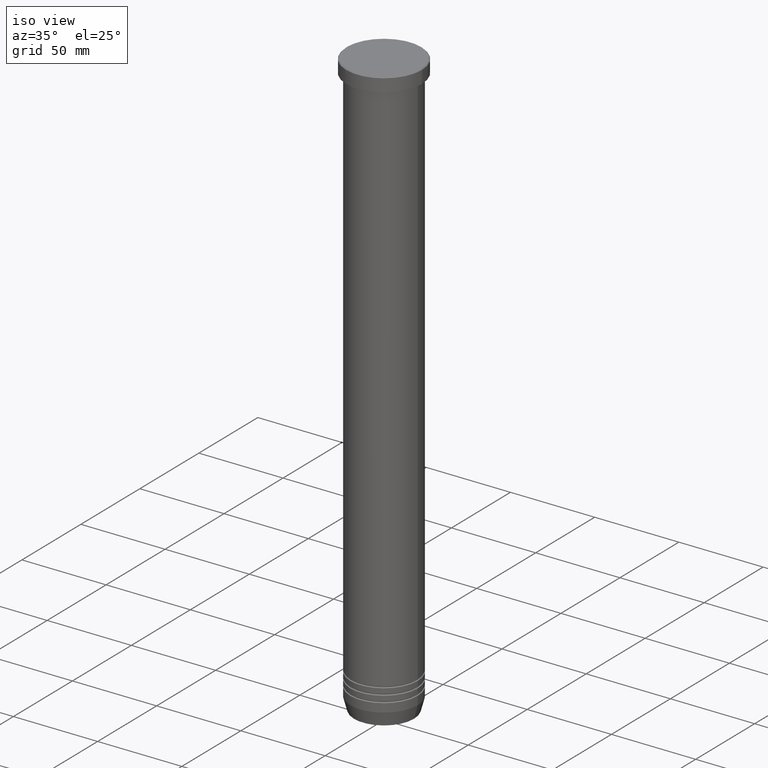
[diagram: clean part render]
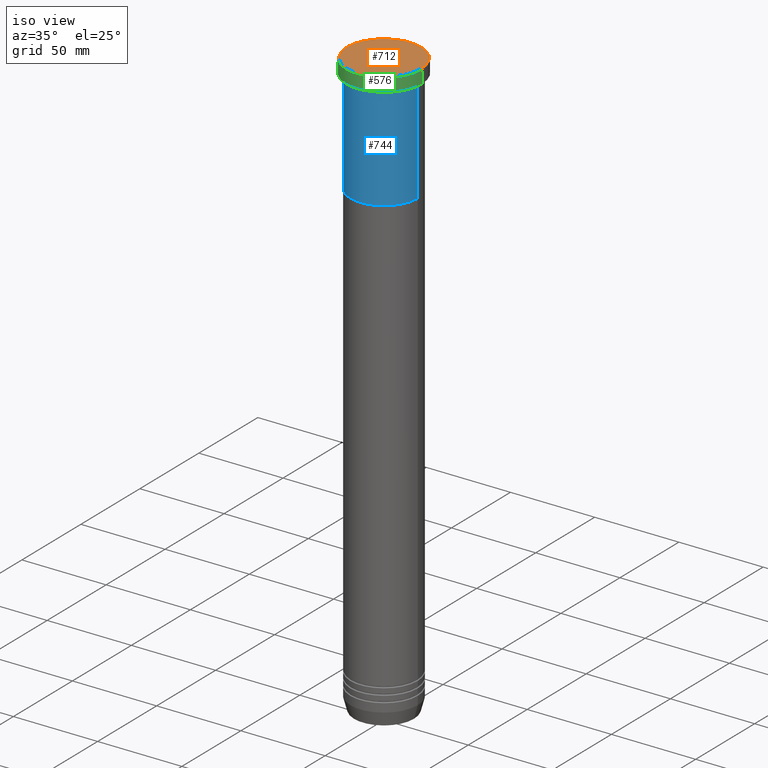
[diagram: same view with three faces highlighted in distinct colors, each labeled with its STEP entity id]
A machine part, iso view with three faces highlighted in distinct colors.
Their STEP definitions:

[orange] entity #712 — the highlighted planar face has unit normal (0, -0, 1).
#23 = AXIS2_PLACEMENT_3D ( 'NONE', #930, #537, #862 ) ;
#26 = ORIENTED_EDGE ( 'NONE', *, *, #195, .T. ) ;
#177 = CARTESIAN_POINT ( 'NONE',  ( 0.000000000000000000, 0.000000000000000000, 0.000000000000000000 ) ) ;
#195 = EDGE_CURVE ( 'NONE', #359, #528, #369, .T. ) ;
#239 = DIRECTION ( 'NONE',  ( 1.000000000000000000, 0.000000000000000000, 0.000000000000000000 ) ) ;
#331 = CARTESIAN_POINT ( 'NONE',  ( 21.99999999999997868, 2.724839128102859413E-15, 0.000000000000000000 ) ) ;
#344 = DIRECTION ( 'NONE',  ( 1.000000000000000000, 0.000000000000000000, 0.000000000000000000 ) ) ;
#359 = VERTEX_POINT ( 'NONE', #331 ) ;
#369 = CIRCLE ( 'NONE', #853, 21.99999999999997868 ) ;
#375 = EDGE_CURVE ( 'NONE', #528, #359, #686, .T. ) ;
#378 = ORIENTED_EDGE ( 'NONE', *, *, #375, .T. ) ;
#422 = CARTESIAN_POINT ( 'NONE',  ( 0.000000000000000000, 0.000000000000000000, 0.000000000000000000 ) ) ;
#528 = VERTEX_POINT ( 'NONE', #955 ) ;
#537 = DIRECTION ( 'NONE',  ( 0.000000000000000000, -0.000000000000000000, 1.000000000000000000 ) ) ;
#545 = DIRECTION ( 'NONE',  ( -0.000000000000000000, -0.000000000000000000, 1.000000000000000000 ) ) ;
#603 = PLANE ( 'NONE',  #23 ) ;
#635 = DIRECTION ( 'NONE',  ( -0.000000000000000000, -0.000000000000000000, 1.000000000000000000 ) ) ;
#686 = CIRCLE ( 'NONE', #756, 21.99999999999997868 ) ;
#712 = ADVANCED_FACE ( 'NONE', ( #926 ), #603, .T. ) ;
#756 = AXIS2_PLACEMENT_3D ( 'NONE', #422, #545, #239 ) ;
#830 = EDGE_LOOP ( 'NONE', ( #378, #26 ) ) ;
#853 = AXIS2_PLACEMENT_3D ( 'NONE', #177, #635, #344 ) ;
#862 = DIRECTION ( 'NONE',  ( 1.000000000000000000, 0.000000000000000000, 0.000000000000000000 ) ) ;
#926 = FACE_OUTER_BOUND ( 'NONE', #830, .T. ) ;
#930 = CARTESIAN_POINT ( 'NONE',  ( 0.000000000000000000, 0.000000000000000000, 0.000000000000000000 ) ) ;
#955 = CARTESIAN_POINT ( 'NONE',  ( -21.99999999999997868, 0.000000000000000000, 0.000000000000000000 ) ) ;

[blue] entity #744 — the highlighted cylindrical surface (partial cylindrical patch) has radius 20 mm, axis along (-0, -0, 1).
#84 = ORIENTED_EDGE ( 'NONE', *, *, #594, .F. ) ;
#91 = ORIENTED_EDGE ( 'NONE', *, *, #184, .F. ) ;
#116 = DIRECTION ( 'NONE',  ( -0.000000000000000000, -0.000000000000000000, 1.000000000000000000 ) ) ;
#134 = EDGE_LOOP ( 'NONE', ( #91, #593, #402, #84 ) ) ;
#159 = CARTESIAN_POINT ( 'NONE',  ( 0.000000000000000000, 0.000000000000000000, -70.00000000000000000 ) ) ;
#183 = CARTESIAN_POINT ( 'NONE',  ( 0.000000000000000000, 0.000000000000000000, -9.000000000000001776 ) ) ;
#184 = EDGE_CURVE ( 'NONE', #604, #512, #786, .T. ) ;
#247 = DIRECTION ( 'NONE',  ( -0.000000000000000000, -0.000000000000000000, 1.000000000000000000 ) ) ;
#261 = CARTESIAN_POINT ( 'NONE',  ( -20.00000000000000000, 2.449293598294706513E-15, -9.000000000000001776 ) ) ;
#349 = CIRCLE ( 'NONE', #759, 20.00000000000000000 ) ;
#354 = VERTEX_POINT ( 'NONE', #784 ) ;
#367 = CIRCLE ( 'NONE', #530, 20.00000000000000000 ) ;
#402 = ORIENTED_EDGE ( 'NONE', *, *, #1061, .T. ) ;
#408 = CYLINDRICAL_SURFACE ( 'NONE', #643, 20.00000000000000000 ) ;
#435 = EDGE_CURVE ( 'NONE', #604, #575, #367, .T. ) ;
#480 = DIRECTION ( 'NONE',  ( -0.000000000000000000, -0.000000000000000000, 1.000000000000000000 ) ) ;
#481 = CARTESIAN_POINT ( 'NONE',  ( -20.00000000000000000, 2.449293598294706513E-15, 0.000000000000000000 ) ) ;
#512 = VERTEX_POINT ( 'NONE', #261 ) ;
#530 = AXIS2_PLACEMENT_3D ( 'NONE', #159, #480, #791 ) ;
#555 = DIRECTION ( 'NONE',  ( -0.000000000000000000, -0.000000000000000000, 1.000000000000000000 ) ) ;
#561 = FACE_OUTER_BOUND ( 'NONE', #134, .T. ) ;
#575 = VERTEX_POINT ( 'NONE', #982 ) ;
#579 = CARTESIAN_POINT ( 'NONE',  ( 20.00000000000000000, 0.000000000000000000, 0.000000000000000000 ) ) ;
#593 = ORIENTED_EDGE ( 'NONE', *, *, #435, .T. ) ;
#594 = EDGE_CURVE ( 'NONE', #512, #354, #349, .T. ) ;
#604 = VERTEX_POINT ( 'NONE', #747 ) ;
#643 = AXIS2_PLACEMENT_3D ( 'NONE', #1053, #555, #692 ) ;
#645 = VECTOR ( 'NONE', #116, 1000.000000000000000 ) ;
#692 = DIRECTION ( 'NONE',  ( 1.000000000000000000, 0.000000000000000000, 0.000000000000000000 ) ) ;
#703 = DIRECTION ( 'NONE',  ( 1.000000000000000000, 0.000000000000000000, 0.000000000000000000 ) ) ;
#739 = VECTOR ( 'NONE', #895, 1000.000000000000000 ) ;
#744 = ADVANCED_FACE ( 'NONE', ( #561 ), #408, .T. ) ;
#747 = CARTESIAN_POINT ( 'NONE',  ( -20.00000000000000000, 2.449293598294706513E-15, -70.00000000000000000 ) ) ;
#759 = AXIS2_PLACEMENT_3D ( 'NONE', #183, #247, #703 ) ;
#784 = CARTESIAN_POINT ( 'NONE',  ( 20.00000000000000000, 0.000000000000000000, -9.000000000000001776 ) ) ;
#786 = LINE ( 'NONE', #481, #739 ) ;
#791 = DIRECTION ( 'NONE',  ( 1.000000000000000000, 0.000000000000000000, 0.000000000000000000 ) ) ;
#815 = LINE ( 'NONE', #579, #645 ) ;
#895 = DIRECTION ( 'NONE',  ( -0.000000000000000000, -0.000000000000000000, 1.000000000000000000 ) ) ;
#982 = CARTESIAN_POINT ( 'NONE',  ( 20.00000000000000000, 0.000000000000000000, -70.00000000000000000 ) ) ;
#1053 = CARTESIAN_POINT ( 'NONE',  ( 0.000000000000000000, 0.000000000000000000, 0.000000000000000000 ) ) ;
#1061 = EDGE_CURVE ( 'NONE', #575, #354, #815, .T. ) ;

[green] entity #576 — the highlighted cylindrical surface (partial cylindrical patch) has radius 22.5 mm, axis along (-0, -0, 1).
#3 = CARTESIAN_POINT ( 'NONE',  ( -22.50000000000000000, 2.755455298081544778E-15, -0.5000000000000213163 ) ) ;
#5 = EDGE_CURVE ( 'NONE', #472, #220, #252, .T. ) ;
#6 = DIRECTION ( 'NONE',  ( 1.000000000000000000, 0.000000000000000000, 0.000000000000000000 ) ) ;
#33 = DIRECTION ( 'NONE',  ( 1.000000000000000000, 0.000000000000000000, 0.000000000000000000 ) ) ;
#54 = VECTOR ( 'NONE', #178, 1000.000000000000000 ) ;
#112 = LINE ( 'NONE', #824, #1033 ) ;
#121 = AXIS2_PLACEMENT_3D ( 'NONE', #839, #763, #33 ) ;
#174 = CARTESIAN_POINT ( 'NONE',  ( 22.50000000000000000, 0.000000000000000000, -7.999999999999998224 ) ) ;
#178 = DIRECTION ( 'NONE',  ( -0.000000000000000000, -0.000000000000000000, 1.000000000000000000 ) ) ;
#201 = ORIENTED_EDGE ( 'NONE', *, *, #1044, .F. ) ;
#206 = VERTEX_POINT ( 'NONE', #3 ) ;
#214 = EDGE_LOOP ( 'NONE', ( #201, #1049, #1008, #1034 ) ) ;
#217 = CIRCLE ( 'NONE', #121, 22.50000000000000000 ) ;
#220 = VERTEX_POINT ( 'NONE', #644 ) ;
#252 = LINE ( 'NONE', #570, #54 ) ;
#258 = CARTESIAN_POINT ( 'NONE',  ( 0.000000000000000000, 0.000000000000000000, 0.000000000000000000 ) ) ;
#429 = CIRCLE ( 'NONE', #884, 22.50000000000000000 ) ;
#472 = VERTEX_POINT ( 'NONE', #174 ) ;
#486 = EDGE_CURVE ( 'NONE', #844, #472, #429, .T. ) ;
#566 = AXIS2_PLACEMENT_3D ( 'NONE', #258, #577, #892 ) ;
#569 = DIRECTION ( 'NONE',  ( -0.000000000000000000, -0.000000000000000000, 1.000000000000000000 ) ) ;
#570 = CARTESIAN_POINT ( 'NONE',  ( 22.50000000000000000, 0.000000000000000000, 0.000000000000000000 ) ) ;
#576 = ADVANCED_FACE ( 'NONE', ( #1047 ), #789, .T. ) ;
#577 = DIRECTION ( 'NONE',  ( -0.000000000000000000, -0.000000000000000000, 1.000000000000000000 ) ) ;
#621 = DIRECTION ( 'NONE',  ( -0.000000000000000000, -0.000000000000000000, 1.000000000000000000 ) ) ;
#644 = CARTESIAN_POINT ( 'NONE',  ( 22.50000000000000000, 0.000000000000000000, -0.5000000000000213163 ) ) ;
#719 = CARTESIAN_POINT ( 'NONE',  ( 0.000000000000000000, 0.000000000000000000, -7.999999999999998224 ) ) ;
#763 = DIRECTION ( 'NONE',  ( 0.000000000000000000, 0.000000000000000000, -1.000000000000000000 ) ) ;
#789 = CYLINDRICAL_SURFACE ( 'NONE', #566, 22.50000000000000000 ) ;
#824 = CARTESIAN_POINT ( 'NONE',  ( -22.50000000000000000, 2.755455298081544778E-15, 0.000000000000000000 ) ) ;
#839 = CARTESIAN_POINT ( 'NONE',  ( 0.000000000000000000, 0.000000000000000000, -0.5000000000000213163 ) ) ;
#843 = CARTESIAN_POINT ( 'NONE',  ( -22.50000000000000000, 2.755455298081544778E-15, -7.999999999999998224 ) ) ;
#844 = VERTEX_POINT ( 'NONE', #843 ) ;
#884 = AXIS2_PLACEMENT_3D ( 'NONE', #719, #621, #6 ) ;
#892 = DIRECTION ( 'NONE',  ( 1.000000000000000000, 0.000000000000000000, 0.000000000000000000 ) ) ;
#912 = EDGE_CURVE ( 'NONE', #220, #206, #217, .T. ) ;
#1008 = ORIENTED_EDGE ( 'NONE', *, *, #5, .T. ) ;
#1033 = VECTOR ( 'NONE', #569, 1000.000000000000000 ) ;
#1034 = ORIENTED_EDGE ( 'NONE', *, *, #912, .T. ) ;
#1044 = EDGE_CURVE ( 'NONE', #844, #206, #112, .T. ) ;
#1047 = FACE_OUTER_BOUND ( 'NONE', #214, .T. ) ;
#1049 = ORIENTED_EDGE ( 'NONE', *, *, #486, .T. ) ;